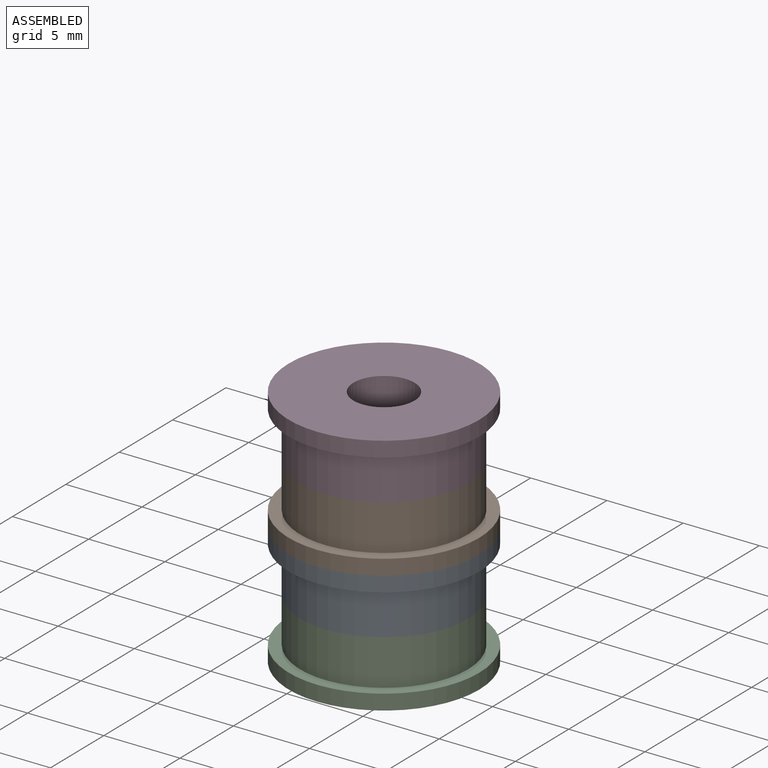
[diagram: assembled view]
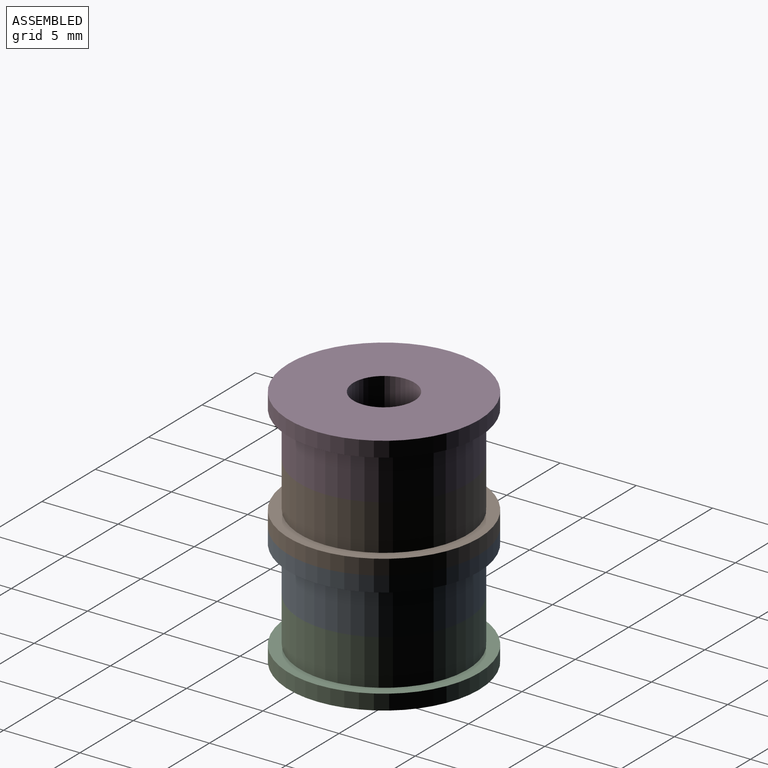
[diagram: assembled view, second angle]
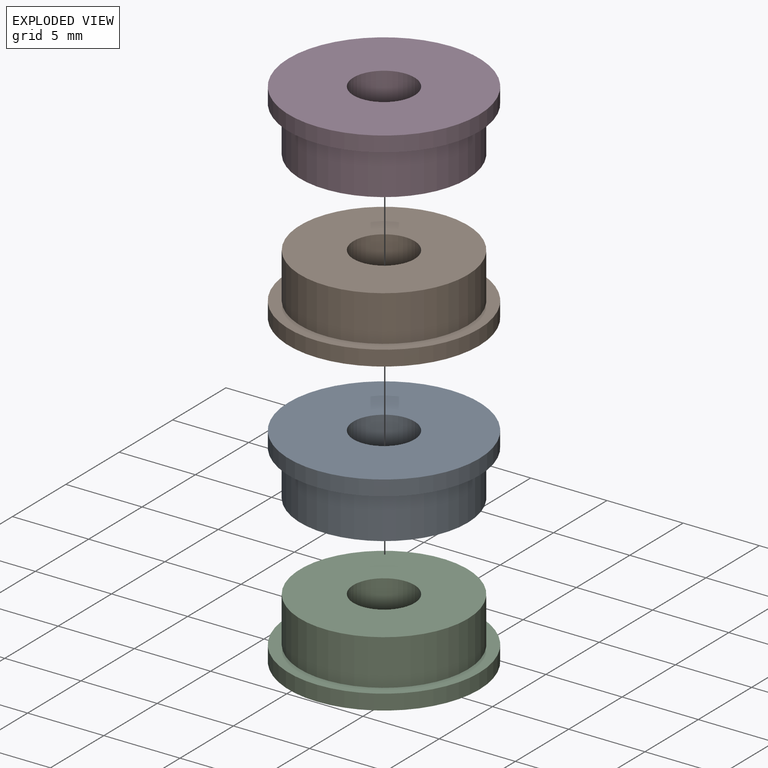
[diagram: exploded view]
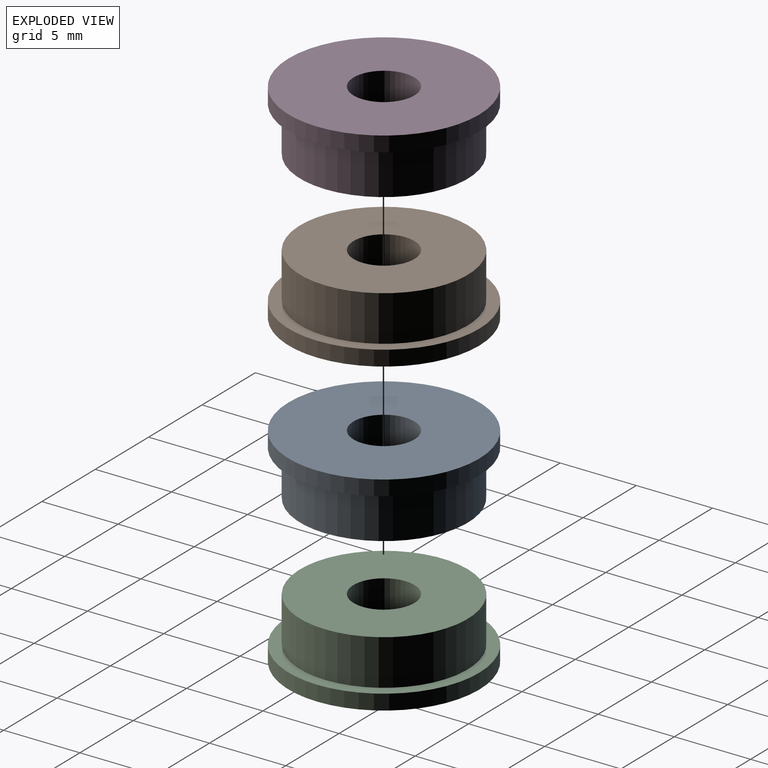
[diagram: exploded view, second angle]
ASSEMBLY  parts=4 mates=3
PART A: 6 faces, bbox 12.5x12.5x4 mm
  f0: cylinder r=2mm len=4mm, axis (0,0,-1), area 50.3mm2, adj f3,f5
  f1: cylinder r=6.25mm len=12.5mm, axis (0,0,-1), area 39.3mm2, adj f2,f3
  f2: plane 12.5x12.5mm, normal (0,0,1), area 27.7mm2, adj f1,f4
  f3: plane 12.5x12.5mm, normal (0,0,-1), area 110.2mm2, adj f0,f1
  f4: cylinder r=5.5mm len=11mm, axis (0,0,-1), area 103.7mm2, adj f2,f5
  f5: plane 11x11mm, normal (0,0,1), area 82.5mm2, adj f0,f4
PART B: same geometry as A
PART C: same geometry as A
PART D: same geometry as A
PLACE A rot(axis=(1,0,0),180deg) t=(8.83,8.64,17.54)mm
PLACE B t=(8.83,8.64,17.54)mm
PLACE C t=(8.83,8.64,9.54)mm
PLACE D rot(axis=(1,0,0),180deg) t=(8.83,8.64,25.54)mm
MATE fastened C.f0 <-> A.f0  axis (0,0,1) through (8.83,8.64,13.54)mm
MATE fastened A.f1 <-> B.f1  axis (0,0,1) through (8.83,8.64,17.54)mm
MATE fastened B.f0 <-> D.f0  axis (0,0,1) through (8.83,8.64,21.54)mm
